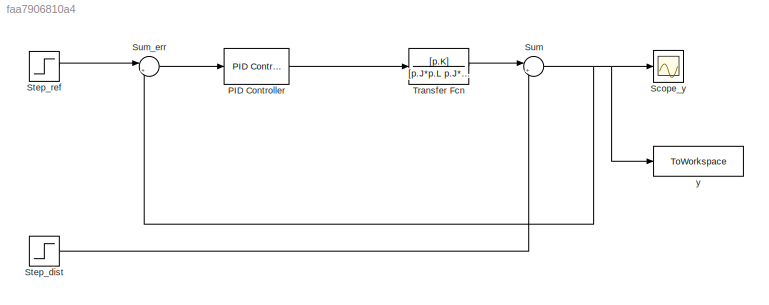
MODEL slx_faa7906810a4
KIND model
CONFIG AbsTol = auto
CONFIG EnableMultiTasking = off
CONFIG FixedStep = auto
CONFIG MaxStep = auto
CONFIG MinStep = auto
CONFIG RelTol = 1e-3
CONFIG SampleTimeConstraint = Unconstrained
CONFIG SolverName = ode45
CONFIG StartTime = 0.0
CONFIG StopTime = 0.2
BLOCK [Reference] PID Controller  REF=slpidlib/PID Controller
  LibrarySourceBlock = simulink/Continuous/PID Controller
  SourceBlock = slpidlib/PID Controller
  SourceType = PID 1dof
BLOCK [Scope] Scope_y
  Floating = off
  NumInputPorts = 1
  ScopeSpecificationString = Simulink.scopes.TimeScopeBlockCfg('CurrentConfiguration', extmgr.ConfigurationSet(extmgr.Configuration('Core','General UI',true),extmgr.Configuration('Core','Source UI',true),extmgr.Configuration('Sources','WiredSimulink',true,'DataLoggingVariableName','ScopeData1'),extmgr.Configuration('Visuals','Time Domain',true,'SerializedDisplays',{struct('MinYLimReal','-0.12905','MaxYLimReal','1.16145','YLab...<+1480ch>
BLOCK [Step] Step_dist
  After = 0.1
  SampleTime = 0
  Time = 0.05
BLOCK [Step] Step_ref
  SampleTime = 0
  Time = 0
BLOCK [Sum] Sum
  Inputs = |+-
BLOCK [Sum] Sum_err
  Inputs = |+-
BLOCK [TransferFcn] Transfer Fcn
  Denominator = [p.J*p.L p.J*p.R+p.b*p.L p.b*p.R+p.K^2]
  Numerator = [p.K]
BLOCK [ToWorkspace] y
  FixptAsFi = on
  MaxDataPoints = inf
  SampleTime = -1
  SaveFormat = Structure With Time
  VariableName = y
LINE PID Controller:1 -> Transfer Fcn:1
LINE Step_dist:1 -> Sum:2
LINE Step_ref:1 -> Sum_err:1
NET Sum:1 -> Scope_y:1, Sum_err:2, y:1
LINE Sum_err:1 -> PID Controller:1
LINE Transfer Fcn:1 -> Sum:1
note: NET lines group one-source signal fan-out (src -> all destinations, sorted); 1:1 wires keep LINE
